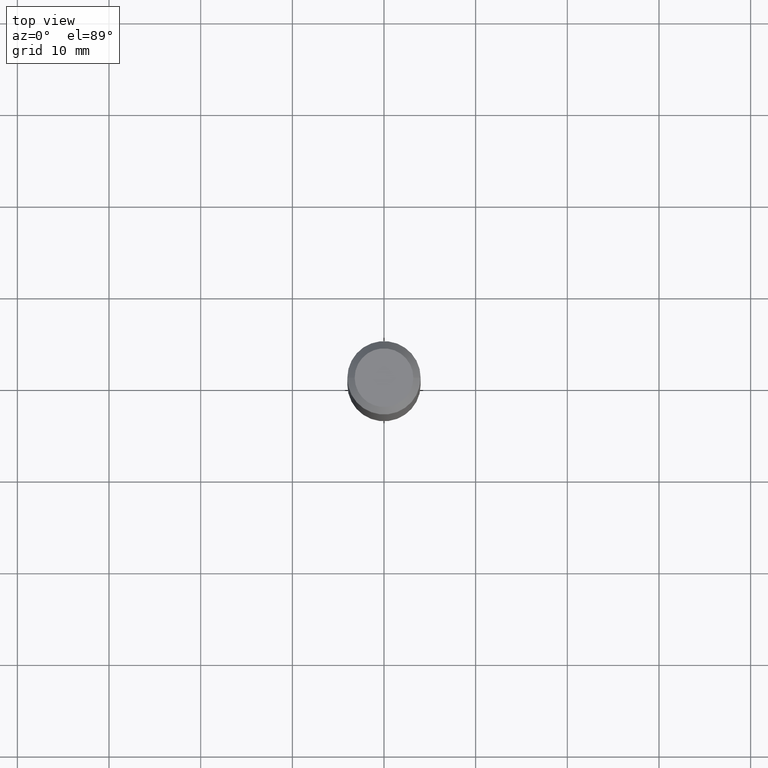
[diagram: clean part render]
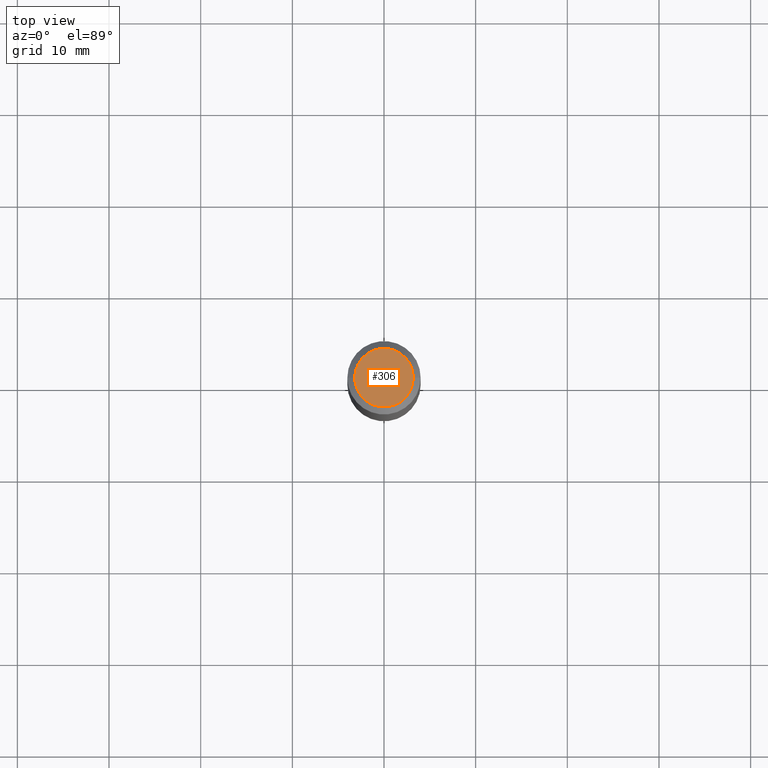
[diagram: same view with one face highlighted and labeled with its STEP entity id]
A machine part, top view. The second image highlights one B-rep face of the part: STEP entity #306.
In plain terms, the highlighted planar face has unit normal (0, -0, -1).
Its self-contained STEP definition (entity closure, byte-faithful):
#8 = CARTESIAN_POINT ( 'NONE',  ( -9.439721640706201686E-47, 1.347742071746726764E-32, 3.860086710912459732E-18 ) ) ;
#24 = EDGE_LOOP ( 'NONE', ( #211, #397 ) ) ;
#39 = DIRECTION ( 'NONE',  ( -2.445468806185136597E-29, 3.491481338843145583E-15, 1.000000000000000000 ) ) ;
#43 = DIRECTION ( 'NONE',  ( -1.000000000000000000, 6.982962677686265922E-15, -4.876176775795935793E-29 ) ) ;
#44 = CIRCLE ( 'NONE', #157, 0.1260000000000000009 ) ;
#53 = CARTESIAN_POINT ( 'NONE',  ( -4.719860820353100843E-47, 6.738710358733633822E-33, 1.930043355456229866E-18 ) ) ;
#80 = CARTESIAN_POINT ( 'NONE',  ( -0.1260000000000000009, 9.348441284752484904E-16, 3.860086710906114178E-18 ) ) ;
#81 = CARTESIAN_POINT ( 'NONE',  ( -9.439721640706201686E-47, 1.347742071746726764E-32, 3.860086710912459732E-18 ) ) ;
#157 = AXIS2_PLACEMENT_3D ( 'NONE', #8, #347, #269 ) ;
#188 = PLANE ( 'NONE',  #423 ) ;
#193 = DIRECTION ( 'NONE',  ( 1.000000000000000000, -6.982962677686265922E-15, 4.876281427513067258E-29 ) ) ;
#209 = DIRECTION ( 'NONE',  ( 2.438088387897960049E-29, -3.491481338843145188E-15, -1.000000000000000000 ) ) ;
#211 = ORIENTED_EDGE ( 'NONE', *, *, #392, .T. ) ;
#266 = CIRCLE ( 'NONE', #391, 0.1260000000000000009 ) ;
#269 = DIRECTION ( 'NONE',  ( 1.000000000000000000, -6.982962677686265922E-15, 4.876281427513067258E-29 ) ) ;
#281 = VERTEX_POINT ( 'NONE', #80 ) ;
#306 = ADVANCED_FACE ( 'NONE', ( #375 ), #188, .F. ) ;
#309 = CARTESIAN_POINT ( 'NONE',  ( 0.1260000000000000009, -1.027466422270894443E-15, 3.860086710919128072E-18 ) ) ;
#347 = DIRECTION ( 'NONE',  ( -2.445468806185136597E-29, 3.491481338843145583E-15, 1.000000000000000000 ) ) ;
#375 = FACE_OUTER_BOUND ( 'NONE', #24, .T. ) ;
#391 = AXIS2_PLACEMENT_3D ( 'NONE', #81, #39, #193 ) ;
#392 = EDGE_CURVE ( 'NONE', #281, #402, #44, .T. ) ;
#397 = ORIENTED_EDGE ( 'NONE', *, *, #414, .T. ) ;
#402 = VERTEX_POINT ( 'NONE', #309 ) ;
#414 = EDGE_CURVE ( 'NONE', #402, #281, #266, .T. ) ;
#423 = AXIS2_PLACEMENT_3D ( 'NONE', #53, #209, #43 ) ;